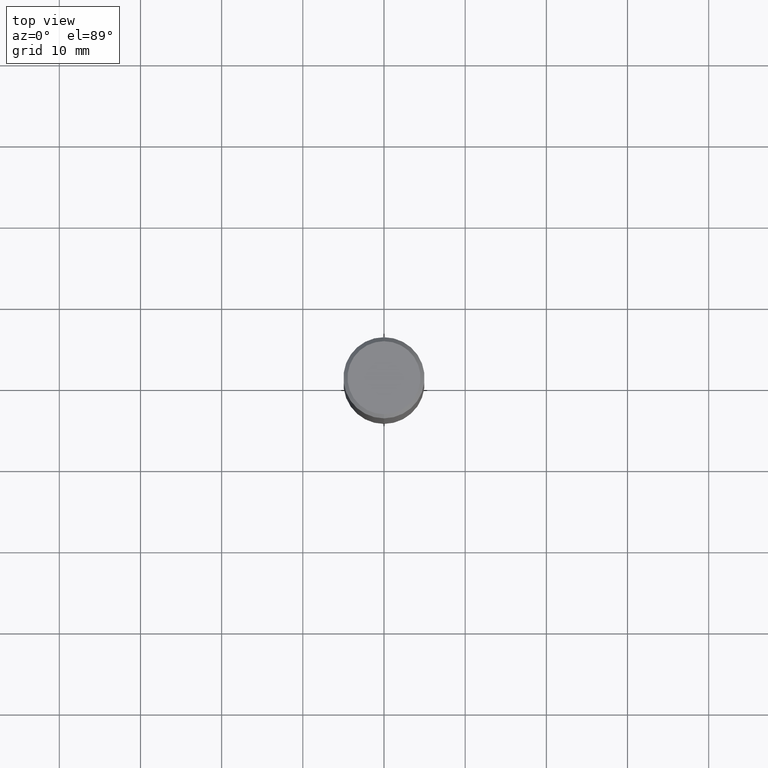
[diagram: clean part render]
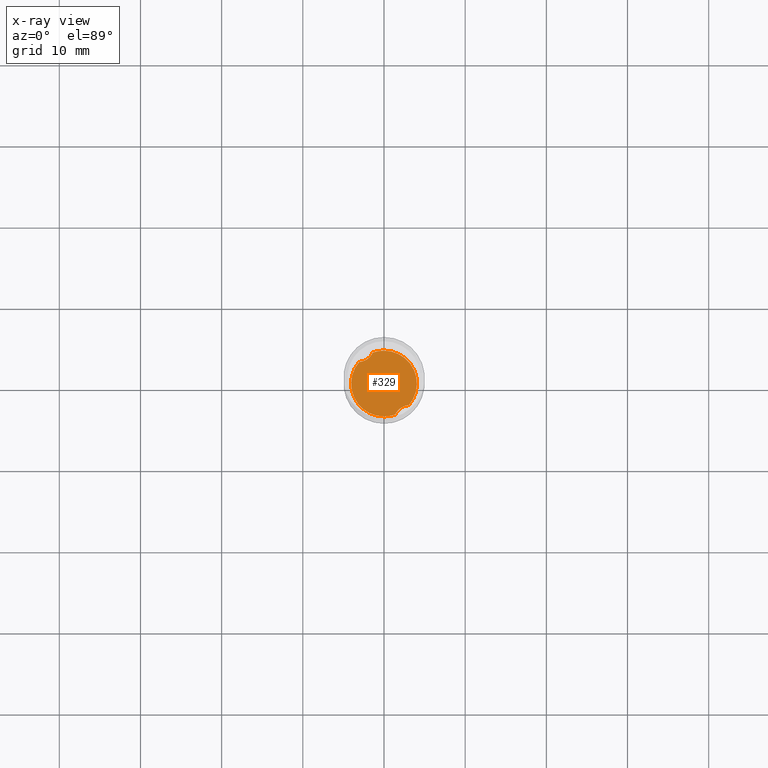
[diagram: x-ray — body ghosted, one internal face saturated and labeled with its STEP entity id]
A machine part, top view, then the same camera in x-ray: the body is ghosted and one INTERNAL B-rep face — a face not visible from any outside direction — is saturated and labeled: STEP entity #329.
In plain terms, the highlighted planar face has unit normal (0, 0, -1).
Its self-contained STEP definition (entity closure, byte-faithful):
#311=EDGE_CURVE('',#363,#359,#829,.T.);
#329=ADVANCED_FACE('',(#850),#851,.T.);
#359=VERTEX_POINT('',#883);
#363=VERTEX_POINT('',#887);
#457=VERTEX_POINT('',#990);
#525=EDGE_CURVE('',#557,#583,#1062,.T.);
#555=VERTEX_POINT('',#1095);
#557=VERTEX_POINT('',#1097);
#559=EDGE_CURVE('',#583,#363,#1099,.T.);
#575=EDGE_CURVE('',#359,#555,#1117,.T.);
#583=VERTEX_POINT('',#1125);
#611=EDGE_CURVE('',#457,#557,#1155,.T.);
#749=EDGE_CURVE('',#555,#457,#1310,.T.);
#829=CIRCLE('',#1420,4.05);
#850=FACE_OUTER_BOUND('',#2247,.T.);
#851=PLANE('',#2248);
#883=CARTESIAN_POINT('',(-6.48114052346401E-016,4.05,-42.0));
#887=CARTESIAN_POINT('',(-1.38063066200116,3.80740843292944,-42.0));
#990=CARTESIAN_POINT('',(1.38063066200116,-3.80740843292944,-42.0));
#1062=CIRCLE('',#3484,4.05);
#1095=CARTESIAN_POINT('',(3.06835017947584,-2.64343094786124,-42.0));
#1097=CARTESIAN_POINT('',(4.2606944742137E-016,-4.05,-42.0));
#1099=B_SPLINE_CURVE_WITH_KNOTS('',3,(#3560,#3561,#3562,#3563,#3564,#3565,#3566,#3567,#3568,#3569),.UNSPECIFIED.,.F.,.F.,(4,2,2,2,4),(0.0,1.00314877893232,1.85428847514891,2.6494875003402,3.53814944480555),.UNSPECIFIED.);
#1117=CIRCLE('',#3593,4.05);
#1125=CARTESIAN_POINT('',(-3.06835017947584,2.64343094786125,-42.0));
#1155=CIRCLE('',#3913,4.05);
#1310=B_SPLINE_CURVE_WITH_KNOTS('',3,(#5220,#5221,#5222,#5223,#5224,#5225,#5226,#5227,#5228,#5229),.UNSPECIFIED.,.F.,.F.,(4,2,2,2,4),(0.0,1.00314877893237,1.85428847514892,2.64948750034018,3.53814944480558),.UNSPECIFIED.);
#1420=AXIS2_PLACEMENT_3D('',#5432,#5433,#5434);
#2247=EDGE_LOOP('',(#5470,#5471,#5472,#5473,#5474,#5475));
#2248=AXIS2_PLACEMENT_3D('',#5476,#5477,#5478);
#3484=AXIS2_PLACEMENT_3D('',#5663,#5664,#5665);
#3560=CARTESIAN_POINT('',(-4.1,2.77328277601025,-42.0));
#3561=CARTESIAN_POINT('',(-3.78318170986734,2.66633366453393,-42.0));
#3562=CARTESIAN_POINT('',(-3.44975316201615,2.61652097233956,-41.9999999999688));
#3563=CARTESIAN_POINT('',(-2.83504044194626,2.65903995866247,-41.9999999999688));
#3564=CARTESIAN_POINT('',(-2.56061881756427,2.73069206085907,-41.9999999999982));
#3565=CARTESIAN_POINT('',(-2.07222000329612,2.97556098173108,-41.9999999999982));
#3566=CARTESIAN_POINT('',(-1.86382232896242,3.13766621936099,-41.9999999999998));
#3567=CARTESIAN_POINT('',(-1.49685411039135,3.55939080228832,-41.9999999999998));
#3568=CARTESIAN_POINT('',(-1.35468499285461,3.81914464642308,-42.0));
#3569=CARTESIAN_POINT('',(-1.26220089883299,4.1,-42.0));
#3593=AXIS2_PLACEMENT_3D('',#5749,#5750,#5751);
#3913=AXIS2_PLACEMENT_3D('',#5791,#5792,#5793);
#5220=CARTESIAN_POINT('',(4.1,-2.77328277601024,-42.0));
#5221=CARTESIAN_POINT('',(3.78318170986732,-2.66633366453392,-42.0));
#5222=CARTESIAN_POINT('',(3.44975316201615,-2.61652097233955,-41.9999999999688));
#5223=CARTESIAN_POINT('',(2.8350404419463,-2.65903995866246,-41.9999999999688));
#5224=CARTESIAN_POINT('',(2.56061881756428,-2.73069206085905,-41.9999999999982));
#5225=CARTESIAN_POINT('',(2.0722200032961,-2.97556098173108,-41.9999999999982));
#5226=CARTESIAN_POINT('',(1.86382232896241,-3.13766621936101,-41.9999999999998));
#5227=CARTESIAN_POINT('',(1.49685411039136,-3.55939080228832,-41.9999999999998));
#5228=CARTESIAN_POINT('',(1.35468499285461,-3.81914464642307,-42.0));
#5229=CARTESIAN_POINT('',(1.26220089883299,-4.1,-42.0));
#5432=CARTESIAN_POINT('',(0.0,0.0,-42.0));
#5433=DIRECTION('',(0.0,0.0,-1.0));
#5434=DIRECTION('',(0.0,1.0,0.0));
#5470=ORIENTED_EDGE('',*,*,#749,.T.);
#5471=ORIENTED_EDGE('',*,*,#611,.T.);
#5472=ORIENTED_EDGE('',*,*,#525,.T.);
#5473=ORIENTED_EDGE('',*,*,#559,.T.);
#5474=ORIENTED_EDGE('',*,*,#311,.T.);
#5475=ORIENTED_EDGE('',*,*,#575,.T.);
#5476=CARTESIAN_POINT('',(0.0,2.025,-42.0));
#5477=DIRECTION('',(0.0,0.0,-1.0));
#5478=DIRECTION('',(0.0,1.0,0.0));
#5663=CARTESIAN_POINT('',(0.0,0.0,-42.0));
#5664=DIRECTION('',(0.0,0.0,-1.0));
#5665=DIRECTION('',(0.0,1.0,0.0));
#5749=CARTESIAN_POINT('',(0.0,0.0,-42.0));
#5750=DIRECTION('',(0.0,0.0,-1.0));
#5751=DIRECTION('',(0.0,1.0,0.0));
#5791=CARTESIAN_POINT('',(0.0,0.0,-42.0));
#5792=DIRECTION('',(0.0,0.0,-1.0));
#5793=DIRECTION('',(0.0,1.0,0.0));